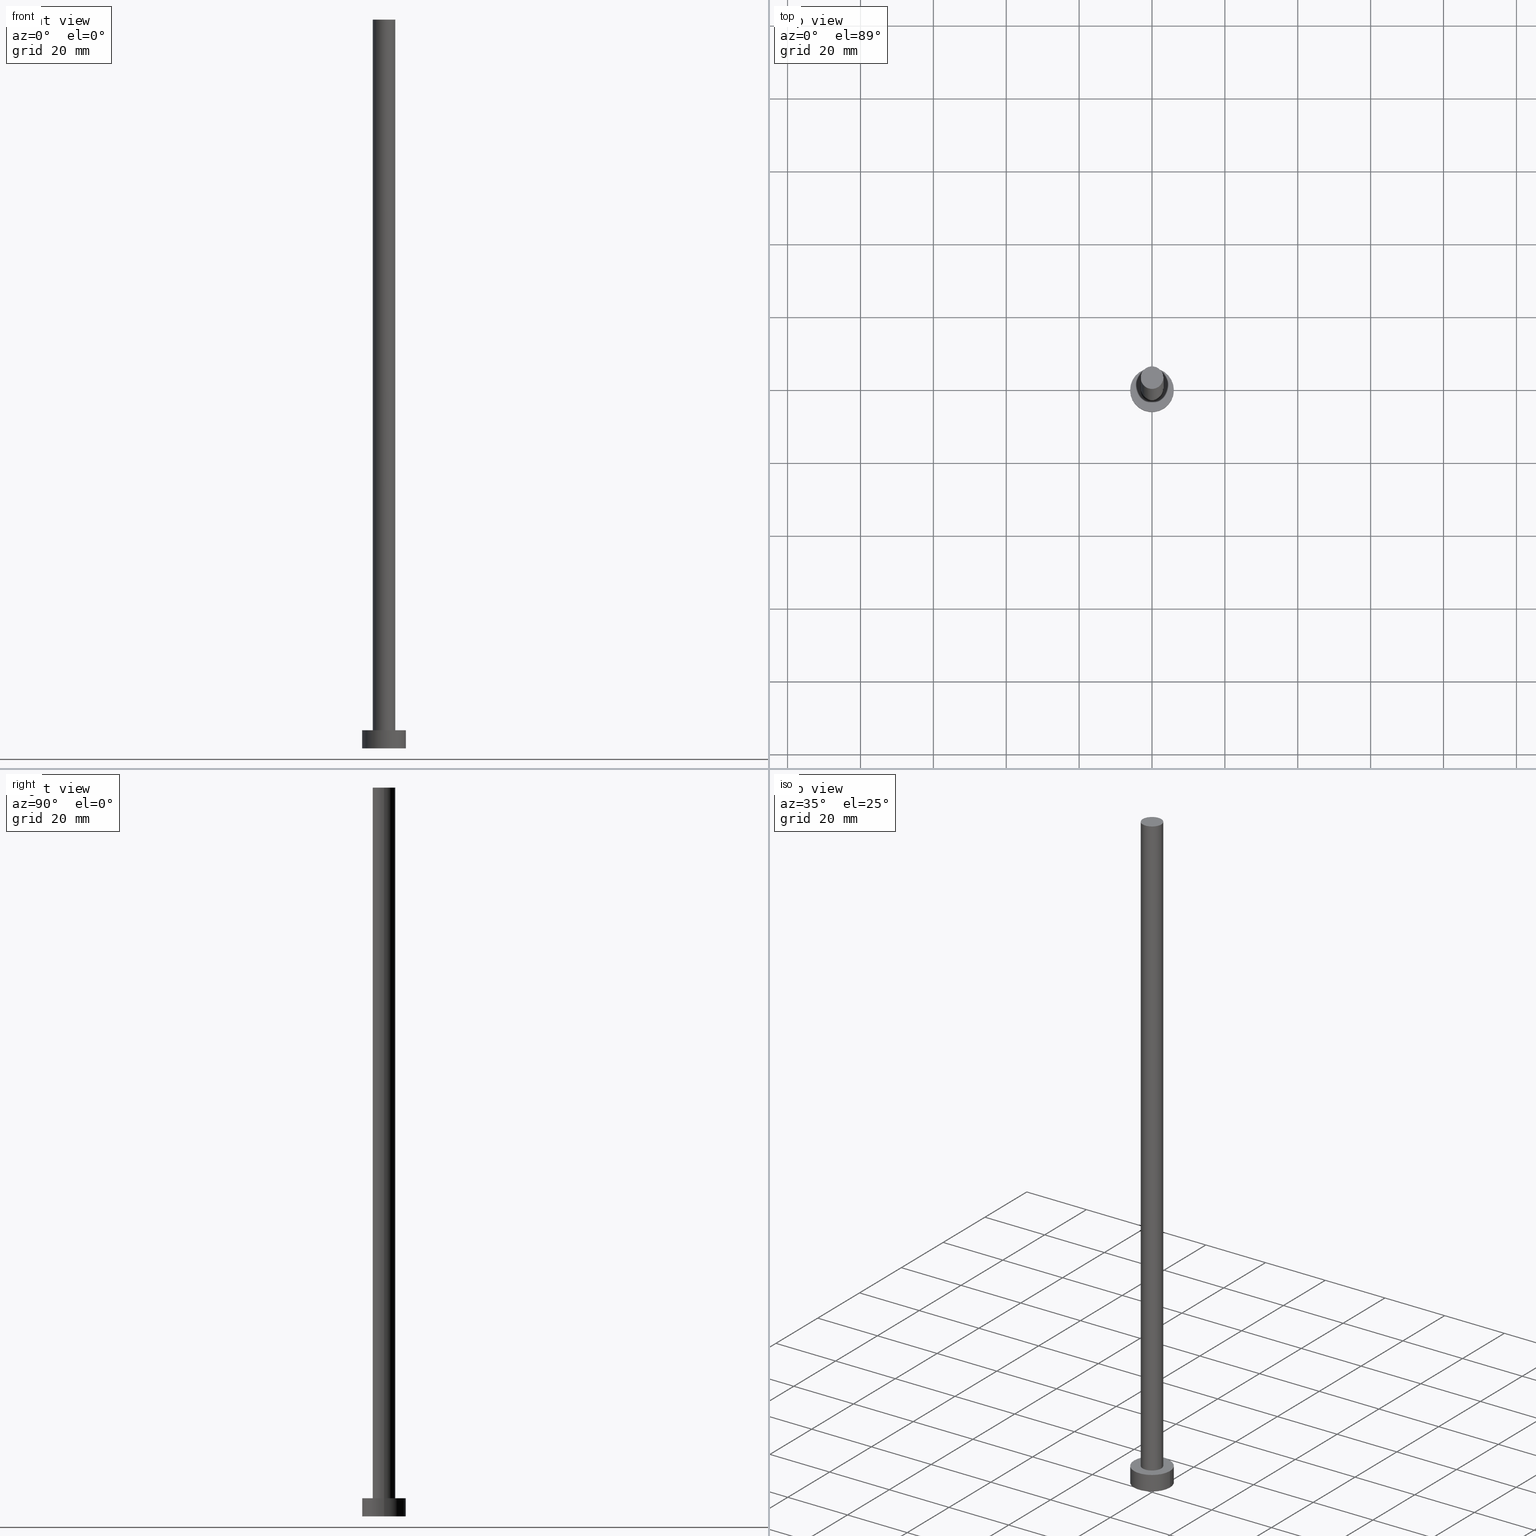
[diagram: canonical four-view strip — front | top / right | iso, engineering-drawing reading convention]
A machine part, canonical four-view strip (front | top / right | iso — engineering-drawing reading convention). The complete STEP part file that produces these views, byte-faithful:
ISO-10303-21;
HEADER;
FILE_DESCRIPTION (( 'STEP AP203' ),
    '1' );
FILE_NAME ('05b7.STEP',
    '2023-02-12T12:16:47',
    ( '' ),
    ( '' ),
    'SwSTEP 2.0',
    'SolidWorks 2019',
    '' );
FILE_SCHEMA (( 'CONFIG_CONTROL_DESIGN' ));
ENDSEC;

DATA;
#1 = VERTEX_POINT ( 'NONE', #45 ) ;
#2 = FACE_OUTER_BOUND ( 'NONE', #166, .T. ) ;
#3 = ADVANCED_FACE ( 'NONE', ( #2 ), #69, .T. ) ;
#4 = VERTEX_POINT ( 'NONE', #49 ) ;
#5 = ORIENTED_EDGE ( 'NONE', *, *, #32, .T. ) ;
#6 = APPROVAL ( #143, 'NEUR�EN�' ) ;
#7 = DIRECTION ( 'NONE',  ( 1.000000000000000000, 0.000000000000000000, 0.000000000000000000 ) ) ;
#8 = CARTESIAN_POINT ( 'NONE',  ( 6.000000000000000888, 7.347880794884120722E-16, 5.000000000000000000 ) ) ;
#9 = ADVANCED_FACE ( 'NONE', ( #104 ), #151, .T. ) ;
#10 = DIRECTION ( 'NONE',  ( 0.000000000000000000, 0.000000000000000000, 1.000000000000000000 ) ) ;
#11 = CARTESIAN_POINT ( 'NONE',  ( -6.000000000000000888, 0.000000000000000000, 5.000000000000000000 ) ) ;
#12 = CARTESIAN_POINT ( 'NONE',  ( -3.100000000000000089, 0.000000000000000000, 5.000000000000000000 ) ) ;
#13 = DATE_AND_TIME ( #139, #194 ) ;
#14 = AXIS2_PLACEMENT_3D ( 'NONE', #145, #133, #51 ) ;
#15 = CC_DESIGN_APPROVAL ( #21, ( #176 ) ) ;
#16 = COORDINATED_UNIVERSAL_TIME_OFFSET ( 1, 0, .AHEAD. ) ;
#17 = APPLICATION_PROTOCOL_DEFINITION ( 'international standard', 'config_control_design', 1994, #141 ) ;
#18 = CIRCLE ( 'NONE', #96, 3.100000000000000089 ) ;
#19 = AXIS2_PLACEMENT_3D ( 'NONE', #93, #115, #92 ) ;
#20 = FACE_OUTER_BOUND ( 'NONE', #24, .T. ) ;
#21 = APPROVAL ( #180, 'NEUR�EN�' ) ;
#22 = APPROVAL_STATUS ( 'not_yet_approved' ) ;
#23 = ORIENTED_EDGE ( 'NONE', *, *, #70, .F. ) ;
#24 = EDGE_LOOP ( 'NONE', ( #66, #5 ) ) ;
#25 = ORIENTED_EDGE ( 'NONE', *, *, #50, .F. ) ;
#26 = EDGE_LOOP ( 'NONE', ( #188, #239, #226, #164 ) ) ;
#27 = DIRECTION ( 'NONE',  ( 0.000000000000000000, 0.000000000000000000, 1.000000000000000000 ) ) ;
#28 = DIRECTION ( 'NONE',  ( 1.000000000000000000, 0.000000000000000000, -0.000000000000000000 ) ) ;
#29 = SECURITY_CLASSIFICATION ( '', '', #199 ) ;
#30 = ADVANCED_FACE ( 'NONE', ( #130, #20 ), #102, .T. ) ;
#31 = DIRECTION ( 'NONE',  ( 0.000000000000000000, 0.000000000000000000, 1.000000000000000000 ) ) ;
#32 = EDGE_CURVE ( 'NONE', #65, #147, #219, .T. ) ;
#33 = DIRECTION ( 'NONE',  ( 0.000000000000000000, 0.000000000000000000, 1.000000000000000000 ) ) ;
#34 = AXIS2_PLACEMENT_3D ( 'NONE', #87, #234, #237 ) ;
#35 = CIRCLE ( 'NONE', #238, 3.100000000000000089 ) ;
#36 =( NAMED_UNIT ( * ) SI_UNIT ( $, .STERADIAN. ) SOLID_ANGLE_UNIT ( ) );
#37 = PERSON_AND_ORGANIZATION ( #54, #224 ) ;
#38 = DATE_TIME_ROLE ( 'creation_date' ) ;
#39 = CC_DESIGN_DATE_AND_TIME_ASSIGNMENT ( #233, #38, ( #176 ) ) ;
#40 = APPROVAL_DATE_TIME ( #140, #128 ) ;
#41 = CALENDAR_DATE ( 2023, 12, 2 ) ;
#42 = PRODUCT_DEFINITION_SHAPE ( 'NONE', 'NONE',  #176 ) ;
#43 = CALENDAR_DATE ( 2023, 12, 2 ) ;
#44 = VECTOR ( 'NONE', #192, 1000.000000000000000 ) ;
#45 = CARTESIAN_POINT ( 'NONE',  ( 3.100000000000000089, 3.796405077356794918E-16, 5.000000000000000000 ) ) ;
#46 = VERTEX_POINT ( 'NONE', #155 ) ;
#47 = AXIS2_PLACEMENT_3D ( 'NONE', #112, #10, #28 ) ;
#48 = VERTEX_POINT ( 'NONE', #173 ) ;
#49 = CARTESIAN_POINT ( 'NONE',  ( -3.100000000000000089, 0.000000000000000000, 200.0000000000000000 ) ) ;
#50 = EDGE_CURVE ( 'NONE', #46, #48, #196, .T. ) ;
#51 = DIRECTION ( 'NONE',  ( 1.000000000000000000, 0.000000000000000000, 0.000000000000000000 ) ) ;
#52 = FACE_OUTER_BOUND ( 'NONE', #107, .T. ) ;
#53 = CARTESIAN_POINT ( 'NONE',  ( 6.000000000000000888, 7.347880794884120722E-16, 5.000000000000000000 ) ) ;
#54 = PERSON ( 'NEUR�EN�', 'NEUR�EN�', 'NEUR�EN�', ('NEUR�EN�'), ('NEUR�EN�'), ('NEUR�EN�') ) ;
#55 = DIRECTION ( 'NONE',  ( -0.000000000000000000, -0.000000000000000000, -1.000000000000000000 ) ) ;
#56 = CARTESIAN_POINT ( 'NONE',  ( 0.000000000000000000, 0.000000000000000000, 5.000000000000000000 ) ) ;
#57 = UNCERTAINTY_MEASURE_WITH_UNIT (LENGTH_MEASURE( 1.000000000000000082E-05 ), #98, 'distance_accuracy_value', 'NONE');
#58 = EDGE_CURVE ( 'NONE', #48, #46, #229, .T. ) ;
#59 = APPROVAL_ROLE ( '' ) ;
#60 = DATE_AND_TIME ( #217, #211 ) ;
#61 = AXIS2_PLACEMENT_3D ( 'NONE', #171, #228, #207 ) ;
#62 = AXIS2_PLACEMENT_3D ( 'NONE', #190, #195, #109 ) ;
#63 = PERSON_AND_ORGANIZATION_ROLE ( 'design_owner' ) ;
#64 = EDGE_LOOP ( 'NONE', ( #242, #25 ) ) ;
#65 = VERTEX_POINT ( 'NONE', #8 ) ;
#66 = ORIENTED_EDGE ( 'NONE', *, *, #134, .T. ) ;
#67 = DIRECTION ( 'NONE',  ( -0.000000000000000000, -0.000000000000000000, -1.000000000000000000 ) ) ;
#68 = CC_DESIGN_SECURITY_CLASSIFICATION ( #29, ( #106 ) ) ;
#69 = CYLINDRICAL_SURFACE ( 'NONE', #158, 3.100000000000000089 ) ;
#70 = EDGE_CURVE ( 'NONE', #1, #122, #210, .T. ) ;
#71 = LINE ( 'NONE', #111, #44 ) ;
#72 = DIRECTION ( 'NONE',  ( -0.000000000000000000, -0.000000000000000000, -1.000000000000000000 ) ) ;
#73 = CARTESIAN_POINT ( 'NONE',  ( 0.000000000000000000, 0.000000000000000000, 200.0000000000000000 ) ) ;
#74 = DIRECTION ( 'NONE',  ( 1.000000000000000000, 0.000000000000000000, 0.000000000000000000 ) ) ;
#75 = FACE_OUTER_BOUND ( 'NONE', #64, .T. ) ;
#76 = CLOSED_SHELL ( 'NONE', ( #78, #9, #153, #30, #216, #3, #123 ) ) ;
#77 = PERSON_AND_ORGANIZATION ( #54, #224 ) ;
#78 = ADVANCED_FACE ( 'NONE', ( #157 ), #248, .T. ) ;
#79 = AXIS2_PLACEMENT_3D ( 'NONE', #73, #191, #250 ) ;
#80 = VECTOR ( 'NONE', #116, 1000.000000000000000 ) ;
#81 = ORIENTED_EDGE ( 'NONE', *, *, #182, .T. ) ;
#82 = PERSON_AND_ORGANIZATION ( #54, #224 ) ;
#83 = ORIENTED_EDGE ( 'NONE', *, *, #144, .F. ) ;
#84 = VECTOR ( 'NONE', #154, 1000.000000000000000 ) ;
#85 =( GEOMETRIC_REPRESENTATION_CONTEXT ( 3 ) GLOBAL_UNCERTAINTY_ASSIGNED_CONTEXT ( ( #57 ) ) GLOBAL_UNIT_ASSIGNED_CONTEXT ( ( #98, #179, #36 ) ) REPRESENTATION_CONTEXT ( 'NONE', 'WORKASPACE' ) );
#86 = CC_DESIGN_PERSON_AND_ORGANIZATION_ASSIGNMENT ( #214, #197, ( #176 ) ) ;
#87 = CARTESIAN_POINT ( 'NONE',  ( 0.000000000000000000, 0.000000000000000000, 5.000000000000000000 ) ) ;
#88 = CARTESIAN_POINT ( 'NONE',  ( 0.000000000000000000, 0.000000000000000000, 200.0000000000000000 ) ) ;
#89 = ORIENTED_EDGE ( 'NONE', *, *, #134, .F. ) ;
#90 = AXIS2_PLACEMENT_3D ( 'NONE', #136, #55, #209 ) ;
#91 = CARTESIAN_POINT ( 'NONE',  ( 0.000000000000000000, 0.000000000000000000, 200.0000000000000000 ) ) ;
#92 = DIRECTION ( 'NONE',  ( 1.000000000000000000, 0.000000000000000000, 0.000000000000000000 ) ) ;
#93 = CARTESIAN_POINT ( 'NONE',  ( 0.000000000000000000, 0.000000000000000000, 5.000000000000000000 ) ) ;
#94 = CARTESIAN_POINT ( 'NONE',  ( 3.100000000000000089, 3.796405077356794918E-16, 200.0000000000000000 ) ) ;
#95 = ADVANCED_BREP_SHAPE_REPRESENTATION ( '05b7', ( #236, #121 ), #85 ) ;
#96 = AXIS2_PLACEMENT_3D ( 'NONE', #131, #135, #175 ) ;
#97 = DATE_AND_TIME ( #43, #165 ) ;
#98 =( LENGTH_UNIT ( ) NAMED_UNIT ( * ) SI_UNIT ( .MILLI., .METRE. ) );
#99 = DIRECTION ( 'NONE',  ( 0.000000000000000000, 0.000000000000000000, 1.000000000000000000 ) ) ;
#100 = APPROVAL_DATE_TIME ( #60, #21 ) ;
#101 = CC_DESIGN_APPROVAL ( #128, ( #106 ) ) ;
#102 = PLANE ( 'NONE',  #132 ) ;
#103 = APPROVAL_DATE_TIME ( #97, #6 ) ;
#104 = FACE_OUTER_BOUND ( 'NONE', #26, .T. ) ;
#105 = ORIENTED_EDGE ( 'NONE', *, *, #182, .F. ) ;
#106 = PRODUCT_DEFINITION_FORMATION_WITH_SPECIFIED_SOURCE ( 'LIBOVOLN�', '', #162, .NOT_KNOWN. ) ;
#107 = EDGE_LOOP ( 'NONE', ( #221, #240 ) ) ;
#108 = ORIENTED_EDGE ( 'NONE', *, *, #222, .F. ) ;
#109 = DIRECTION ( 'NONE',  ( 1.000000000000000000, 0.000000000000000000, 0.000000000000000000 ) ) ;
#110 = APPROVAL_PERSON_ORGANIZATION ( #82, #21, #59 ) ;
#111 = CARTESIAN_POINT ( 'NONE',  ( 3.100000000000000089, 3.796405077356794918E-16, 200.0000000000000000 ) ) ;
#112 = CARTESIAN_POINT ( 'NONE',  ( 0.000000000000000000, 0.000000000000000000, 200.0000000000000000 ) ) ;
#113 = CC_DESIGN_PERSON_AND_ORGANIZATION_ASSIGNMENT ( #212, #178, ( #29 ) ) ;
#114 = CC_DESIGN_DATE_AND_TIME_ASSIGNMENT ( #13, #198, ( #29 ) ) ;
#115 = DIRECTION ( 'NONE',  ( 0.000000000000000000, 0.000000000000000000, 1.000000000000000000 ) ) ;
#116 = DIRECTION ( 'NONE',  ( -0.000000000000000000, -0.000000000000000000, -1.000000000000000000 ) ) ;
#117 = PERSON_AND_ORGANIZATION ( #54, #224 ) ;
#118 = COORDINATED_UNIVERSAL_TIME_OFFSET ( 1, 0, .AHEAD. ) ;
#119 = PERSON_AND_ORGANIZATION ( #54, #224 ) ;
#120 = APPROVAL_ROLE ( '' ) ;
#121 = AXIS2_PLACEMENT_3D ( 'NONE', #161, #99, #255 ) ;
#122 = VERTEX_POINT ( 'NONE', #12 ) ;
#123 = ADVANCED_FACE ( 'NONE', ( #52 ), #172, .T. ) ;
#124 = PRODUCT_RELATED_PRODUCT_CATEGORY ( 'detail', '', ( #162 ) ) ;
#125 = DIRECTION ( 'NONE',  ( 1.000000000000000000, 0.000000000000000000, -0.000000000000000000 ) ) ;
#126 = ORIENTED_EDGE ( 'NONE', *, *, #58, .T. ) ;
#127 = AXIS2_PLACEMENT_3D ( 'NONE', #246, #227, #74 ) ;
#128 = APPROVAL ( #22, 'NEUR�EN�' ) ;
#129 = ORIENTED_EDGE ( 'NONE', *, *, #225, .F. ) ;
#130 = FACE_BOUND ( 'NONE', #167, .T. ) ;
#131 = CARTESIAN_POINT ( 'NONE',  ( 0.000000000000000000, 0.000000000000000000, 200.0000000000000000 ) ) ;
#132 = AXIS2_PLACEMENT_3D ( 'NONE', #184, #186, #125 ) ;
#133 = DIRECTION ( 'NONE',  ( 0.000000000000000000, 0.000000000000000000, 1.000000000000000000 ) ) ;
#134 = EDGE_CURVE ( 'NONE', #147, #65, #243, .T. ) ;
#135 = DIRECTION ( 'NONE',  ( 0.000000000000000000, 0.000000000000000000, 1.000000000000000000 ) ) ;
#136 = CARTESIAN_POINT ( 'NONE',  ( 0.000000000000000000, 0.000000000000000000, 5.000000000000000000 ) ) ;
#137 = EDGE_CURVE ( 'NONE', #65, #46, #206, .T. ) ;
#138 = PERSON_AND_ORGANIZATION_ROLE ( 'creator' ) ;
#139 = CALENDAR_DATE ( 2023, 12, 2 ) ;
#140 = DATE_AND_TIME ( #185, #254 ) ;
#141 = APPLICATION_CONTEXT ( 'configuration controlled 3d designs of mechanical parts and assemblies' ) ;
#142 = COORDINATED_UNIVERSAL_TIME_OFFSET ( 1, 0, .AHEAD. ) ;
#143 = APPROVAL_STATUS ( 'not_yet_approved' ) ;
#144 = EDGE_CURVE ( 'NONE', #201, #4, #18, .T. ) ;
#145 = CARTESIAN_POINT ( 'NONE',  ( 0.000000000000000000, 0.000000000000000000, 5.000000000000000000 ) ) ;
#146 = APPROVAL_PERSON_ORGANIZATION ( #117, #128, #120 ) ;
#147 = VERTEX_POINT ( 'NONE', #208 ) ;
#148 = EDGE_CURVE ( 'NONE', #147, #48, #249, .T. ) ;
#149 = EDGE_LOOP ( 'NONE', ( #200, #89, #203, #126 ) ) ;
#150 = APPROVAL_PERSON_ORGANIZATION ( #77, #6, #218 ) ;
#151 = CYLINDRICAL_SURFACE ( 'NONE', #34, 6.000000000000000888 ) ;
#152 = LINE ( 'NONE', #205, #80 ) ;
#153 = ADVANCED_FACE ( 'NONE', ( #156 ), #231, .T. ) ;
#154 = DIRECTION ( 'NONE',  ( -0.000000000000000000, -0.000000000000000000, -1.000000000000000000 ) ) ;
#155 = CARTESIAN_POINT ( 'NONE',  ( 6.000000000000000888, 7.347880794884120722E-16, 0.000000000000000000 ) ) ;
#156 = FACE_OUTER_BOUND ( 'NONE', #149, .T. ) ;
#157 = FACE_OUTER_BOUND ( 'NONE', #204, .T. ) ;
#158 = AXIS2_PLACEMENT_3D ( 'NONE', #88, #67, #189 ) ;
#159 = MECHANICAL_CONTEXT ( 'NONE', #141, 'mechanical' ) ;
#160 = PERSON_AND_ORGANIZATION ( #54, #224 ) ;
#161 = CARTESIAN_POINT ( 'NONE',  ( 0.000000000000000000, 0.000000000000000000, 0.000000000000000000 ) ) ;
#162 = PRODUCT ( '05b7', '05b7', '', ( #159 ) ) ;
#163 = ORIENTED_EDGE ( 'NONE', *, *, #241, .T. ) ;
#164 = ORIENTED_EDGE ( 'NONE', *, *, #148, .F. ) ;
#165 = LOCAL_TIME ( 13, 16, 47.00000000000000000, #118 ) ;
#166 = EDGE_LOOP ( 'NONE', ( #187, #129, #81, #169 ) ) ;
#167 = EDGE_LOOP ( 'NONE', ( #108, #23 ) ) ;
#168 = APPLICATION_CONTEXT ( 'configuration controlled 3d designs of mechanical parts and assemblies' ) ;
#169 = ORIENTED_EDGE ( 'NONE', *, *, #222, .T. ) ;
#170 = VECTOR ( 'NONE', #72, 1000.000000000000000 ) ;
#171 = CARTESIAN_POINT ( 'NONE',  ( 0.000000000000000000, 0.000000000000000000, 0.000000000000000000 ) ) ;
#172 = PLANE ( 'NONE',  #47 ) ;
#173 = CARTESIAN_POINT ( 'NONE',  ( -6.000000000000000888, 0.000000000000000000, 0.000000000000000000 ) ) ;
#174 = AXIS2_PLACEMENT_3D ( 'NONE', #193, #33, #230 ) ;
#175 = DIRECTION ( 'NONE',  ( 1.000000000000000000, 0.000000000000000000, 0.000000000000000000 ) ) ;
#176 = PRODUCT_DEFINITION ( 'NEZN�M�', '', #106, #213 ) ;
#177 = CC_DESIGN_PERSON_AND_ORGANIZATION_ASSIGNMENT ( #37, #63, ( #162 ) ) ;
#178 = PERSON_AND_ORGANIZATION_ROLE ( 'classification_officer' ) ;
#179 =( NAMED_UNIT ( * ) PLANE_ANGLE_UNIT ( ) SI_UNIT ( $, .RADIAN. ) );
#180 = APPROVAL_STATUS ( 'not_yet_approved' ) ;
#181 = CC_DESIGN_APPROVAL ( #6, ( #29 ) ) ;
#182 = EDGE_CURVE ( 'NONE', #4, #122, #152, .T. ) ;
#183 = COORDINATED_UNIVERSAL_TIME_OFFSET ( 1, 0, .AHEAD. ) ;
#184 = CARTESIAN_POINT ( 'NONE',  ( 0.000000000000000000, 0.000000000000000000, 5.000000000000000000 ) ) ;
#185 = CALENDAR_DATE ( 2023, 12, 2 ) ;
#186 = DIRECTION ( 'NONE',  ( 0.000000000000000000, 0.000000000000000000, 1.000000000000000000 ) ) ;
#187 = ORIENTED_EDGE ( 'NONE', *, *, #241, .F. ) ;
#188 = ORIENTED_EDGE ( 'NONE', *, *, #32, .F. ) ;
#189 = DIRECTION ( 'NONE',  ( -1.000000000000000000, 0.000000000000000000, 0.000000000000000000 ) ) ;
#190 = CARTESIAN_POINT ( 'NONE',  ( 0.000000000000000000, 0.000000000000000000, 5.000000000000000000 ) ) ;
#191 = DIRECTION ( 'NONE',  ( -0.000000000000000000, -0.000000000000000000, -1.000000000000000000 ) ) ;
#192 = DIRECTION ( 'NONE',  ( -0.000000000000000000, -0.000000000000000000, -1.000000000000000000 ) ) ;
#193 = CARTESIAN_POINT ( 'NONE',  ( 0.000000000000000000, 0.000000000000000000, 0.000000000000000000 ) ) ;
#194 = LOCAL_TIME ( 13, 16, 47.00000000000000000, #183 ) ;
#195 = DIRECTION ( 'NONE',  ( 0.000000000000000000, 0.000000000000000000, 1.000000000000000000 ) ) ;
#196 = CIRCLE ( 'NONE', #127, 6.000000000000000888 ) ;
#197 = PERSON_AND_ORGANIZATION_ROLE ( 'creator' ) ;
#198 = DATE_TIME_ROLE ( 'classification_date' ) ;
#199 = SECURITY_CLASSIFICATION_LEVEL ( 'unclassified' ) ;
#200 = ORIENTED_EDGE ( 'NONE', *, *, #137, .F. ) ;
#201 = VERTEX_POINT ( 'NONE', #94 ) ;
#202 = CC_DESIGN_PERSON_AND_ORGANIZATION_ASSIGNMENT ( #160, #252, ( #106 ) ) ;
#203 = ORIENTED_EDGE ( 'NONE', *, *, #148, .T. ) ;
#204 = EDGE_LOOP ( 'NONE', ( #83, #163, #223, #105 ) ) ;
#205 = CARTESIAN_POINT ( 'NONE',  ( -3.100000000000000089, 0.000000000000000000, 200.0000000000000000 ) ) ;
#206 = LINE ( 'NONE', #53, #170 ) ;
#207 = DIRECTION ( 'NONE',  ( 1.000000000000000000, 0.000000000000000000, -0.000000000000000000 ) ) ;
#208 = CARTESIAN_POINT ( 'NONE',  ( -6.000000000000000888, 0.000000000000000000, 5.000000000000000000 ) ) ;
#209 = DIRECTION ( 'NONE',  ( -1.000000000000000000, 0.000000000000000000, 0.000000000000000000 ) ) ;
#210 = CIRCLE ( 'NONE', #62, 3.100000000000000089 ) ;
#211 = LOCAL_TIME ( 13, 16, 47.00000000000000000, #142 ) ;
#212 = PERSON_AND_ORGANIZATION ( #54, #224 ) ;
#213 = DESIGN_CONTEXT ( 'detailed design', #168, 'design' ) ;
#214 = PERSON_AND_ORGANIZATION ( #54, #224 ) ;
#215 = APPLICATION_PROTOCOL_DEFINITION ( 'international standard', 'config_control_design', 1994, #168 ) ;
#216 = ADVANCED_FACE ( 'NONE', ( #75 ), #232, .F. ) ;
#217 = CALENDAR_DATE ( 2023, 12, 2 ) ;
#218 = APPROVAL_ROLE ( '' ) ;
#219 = CIRCLE ( 'NONE', #14, 6.000000000000000888 ) ;
#220 = AXIS2_PLACEMENT_3D ( 'NONE', #91, #31, #245 ) ;
#221 = ORIENTED_EDGE ( 'NONE', *, *, #225, .T. ) ;
#222 = EDGE_CURVE ( 'NONE', #122, #1, #35, .T. ) ;
#223 = ORIENTED_EDGE ( 'NONE', *, *, #70, .T. ) ;
#224 = ORGANIZATION ( 'NEUR�EN�', 'NEUR�EN�', '' ) ;
#225 = EDGE_CURVE ( 'NONE', #4, #201, #244, .T. ) ;
#226 = ORIENTED_EDGE ( 'NONE', *, *, #50, .T. ) ;
#227 = DIRECTION ( 'NONE',  ( 0.000000000000000000, 0.000000000000000000, 1.000000000000000000 ) ) ;
#228 = DIRECTION ( 'NONE',  ( 0.000000000000000000, 0.000000000000000000, 1.000000000000000000 ) ) ;
#229 = CIRCLE ( 'NONE', #174, 6.000000000000000888 ) ;
#230 = DIRECTION ( 'NONE',  ( 1.000000000000000000, 0.000000000000000000, 0.000000000000000000 ) ) ;
#231 = CYLINDRICAL_SURFACE ( 'NONE', #90, 6.000000000000000888 ) ;
#232 = PLANE ( 'NONE',  #61 ) ;
#233 = DATE_AND_TIME ( #41, #251 ) ;
#234 = DIRECTION ( 'NONE',  ( -0.000000000000000000, -0.000000000000000000, -1.000000000000000000 ) ) ;
#235 = SHAPE_DEFINITION_REPRESENTATION ( #42, #95 ) ;
#236 = MANIFOLD_SOLID_BREP ( 'P�idat vysunut�m3', #76 ) ;
#237 = DIRECTION ( 'NONE',  ( -1.000000000000000000, 0.000000000000000000, 0.000000000000000000 ) ) ;
#238 = AXIS2_PLACEMENT_3D ( 'NONE', #56, #27, #7 ) ;
#239 = ORIENTED_EDGE ( 'NONE', *, *, #137, .T. ) ;
#240 = ORIENTED_EDGE ( 'NONE', *, *, #144, .T. ) ;
#241 = EDGE_CURVE ( 'NONE', #201, #1, #71, .T. ) ;
#242 = ORIENTED_EDGE ( 'NONE', *, *, #58, .F. ) ;
#243 = CIRCLE ( 'NONE', #19, 6.000000000000000888 ) ;
#244 = CIRCLE ( 'NONE', #220, 3.100000000000000089 ) ;
#245 = DIRECTION ( 'NONE',  ( 1.000000000000000000, 0.000000000000000000, 0.000000000000000000 ) ) ;
#246 = CARTESIAN_POINT ( 'NONE',  ( 0.000000000000000000, 0.000000000000000000, 0.000000000000000000 ) ) ;
#247 = CC_DESIGN_PERSON_AND_ORGANIZATION_ASSIGNMENT ( #119, #138, ( #106 ) ) ;
#248 = CYLINDRICAL_SURFACE ( 'NONE', #79, 3.100000000000000089 ) ;
#249 = LINE ( 'NONE', #11, #84 ) ;
#250 = DIRECTION ( 'NONE',  ( -1.000000000000000000, 0.000000000000000000, 0.000000000000000000 ) ) ;
#251 = LOCAL_TIME ( 13, 16, 47.00000000000000000, #253 ) ;
#252 = PERSON_AND_ORGANIZATION_ROLE ( 'design_supplier' ) ;
#253 = COORDINATED_UNIVERSAL_TIME_OFFSET ( 1, 0, .AHEAD. ) ;
#254 = LOCAL_TIME ( 13, 16, 47.00000000000000000, #16 ) ;
#255 = DIRECTION ( 'NONE',  ( 1.000000000000000000, 0.000000000000000000, 0.000000000000000000 ) ) ;
ENDSEC;
END-ISO-10303-21;
